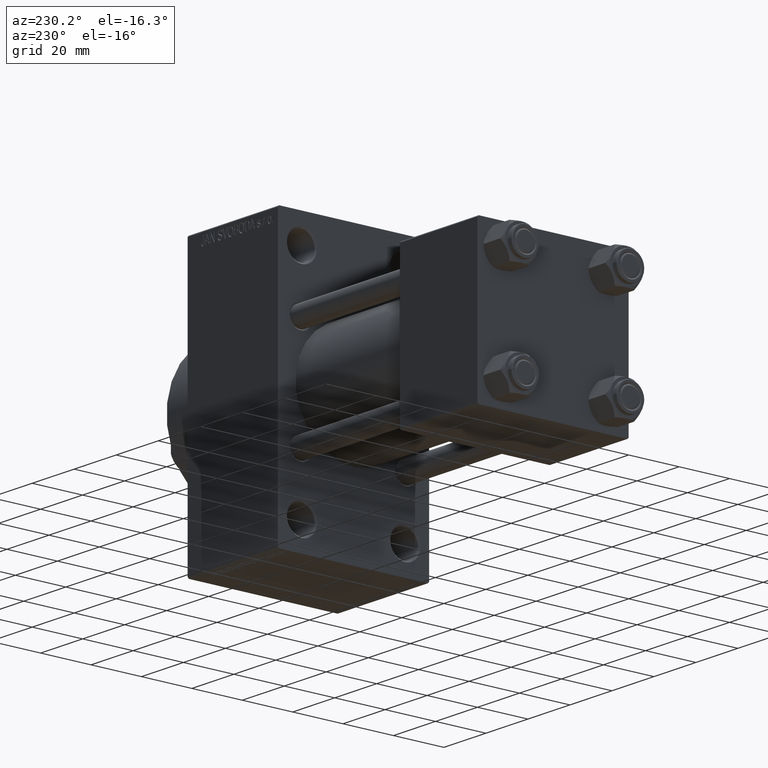
[diagram: clean part render]
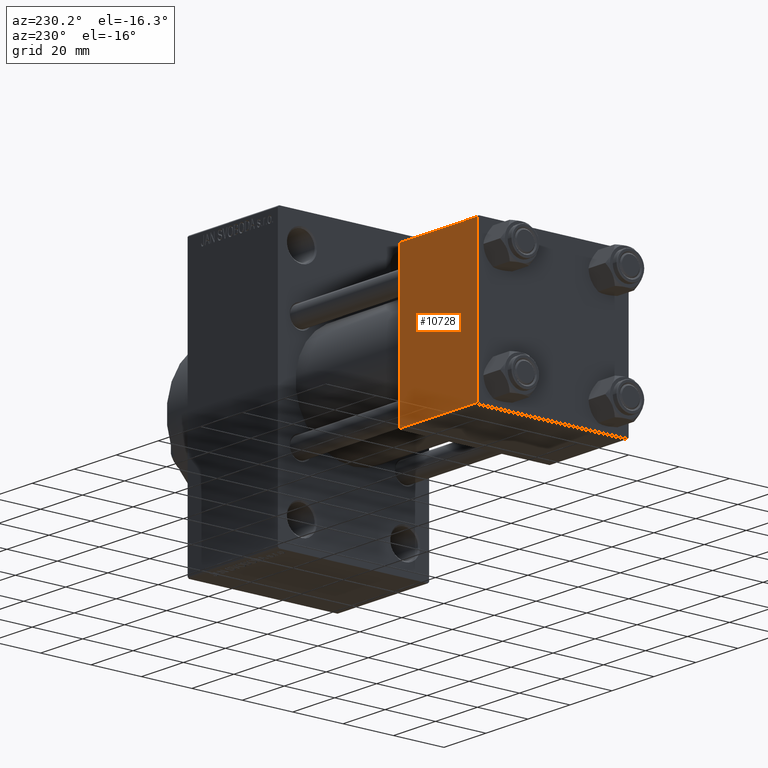
[diagram: same view with one face highlighted and labeled with its STEP entity id]
A machine part, auxiliary view. The second image highlights one B-rep face of the part: STEP entity #10728.
In plain terms, the highlighted planar face has unit normal (0, 1, 0).
Its self-contained STEP definition (entity closure, byte-faithful):
#917 = VERTEX_POINT ( 'NONE', #2960 ) ;
#2960 = CARTESIAN_POINT ( 'NONE',  ( 37.00000000000000000, 29.99999999999999289, 29.50000000000000000 ) ) ;
#3273 = CARTESIAN_POINT ( 'NONE',  ( 37.00000000000000000, 29.99999999999999289, 30.00000000000000000 ) ) ;
#5254 = ORIENTED_EDGE ( 'NONE', *, *, #46551, .T. ) ;
#5670 = LINE ( 'NONE', #6143, #43522 ) ;
#6143 = CARTESIAN_POINT ( 'NONE',  ( 37.00000000000000000, 29.99999999999999289, 29.50000000000000000 ) ) ;
#6607 = LINE ( 'NONE', #3273, #31011 ) ;
#7046 = VERTEX_POINT ( 'NONE', #46773 ) ;
#7858 = VERTEX_POINT ( 'NONE', #29341 ) ;
#10728 = ADVANCED_FACE ( 'NONE', ( #15923 ), #26240, .T. ) ;
#13985 = DIRECTION ( 'NONE',  ( 0.000000000000000000, 0.000000000000000000, -1.000000000000000000 ) ) ;
#14364 = ORIENTED_EDGE ( 'NONE', *, *, #32967, .T. ) ;
#14618 = EDGE_CURVE ( 'NONE', #7046, #18050, #38830, .T. ) ;
#15923 = FACE_OUTER_BOUND ( 'NONE', #38796, .T. ) ;
#17533 = ORIENTED_EDGE ( 'NONE', *, *, #23740, .T. ) ;
#18050 = VERTEX_POINT ( 'NONE', #29776 ) ;
#20685 = CARTESIAN_POINT ( 'NONE',  ( 0.000000000000000000, 29.99999999999999289, 30.00000000000000000 ) ) ;
#21446 = LINE ( 'NONE', #33377, #39030 ) ;
#22408 = DIRECTION ( 'NONE',  ( -1.000000000000000000, 0.000000000000000000, 0.000000000000000000 ) ) ;
#22425 = DIRECTION ( 'NONE',  ( 0.000000000000000000, -0.000000000000000000, 1.000000000000000000 ) ) ;
#23740 = EDGE_CURVE ( 'NONE', #7858, #18050, #21446, .T. ) ;
#26240 = PLANE ( 'NONE',  #29566 ) ;
#29341 = CARTESIAN_POINT ( 'NONE',  ( 37.00000000000000000, 29.99999999999999289, -29.50000000000000000 ) ) ;
#29566 = AXIS2_PLACEMENT_3D ( 'NONE', #37435, #30503, #22425 ) ;
#29776 = CARTESIAN_POINT ( 'NONE',  ( 0.000000000000000000, 29.99999999999999289, -29.50000000000000000 ) ) ;
#30503 = DIRECTION ( 'NONE',  ( -0.000000000000000000, 1.000000000000000000, 0.000000000000000000 ) ) ;
#31011 = VECTOR ( 'NONE', #43378, 1000.000000000000000 ) ;
#32779 = VECTOR ( 'NONE', #13985, 1000.000000000000000 ) ;
#32967 = EDGE_CURVE ( 'NONE', #917, #7858, #6607, .T. ) ;
#33377 = CARTESIAN_POINT ( 'NONE',  ( 37.00000000000000000, 29.99999999999999289, -29.50000000000000000 ) ) ;
#34796 = DIRECTION ( 'NONE',  ( 1.000000000000000000, 0.000000000000000000, 0.000000000000000000 ) ) ;
#35345 = ORIENTED_EDGE ( 'NONE', *, *, #14618, .F. ) ;
#37435 = CARTESIAN_POINT ( 'NONE',  ( 37.00000000000000000, 29.99999999999999289, 30.00000000000000000 ) ) ;
#38796 = EDGE_LOOP ( 'NONE', ( #14364, #17533, #35345, #5254 ) ) ;
#38830 = LINE ( 'NONE', #20685, #32779 ) ;
#39030 = VECTOR ( 'NONE', #22408, 1000.000000000000000 ) ;
#43378 = DIRECTION ( 'NONE',  ( 0.000000000000000000, 0.000000000000000000, -1.000000000000000000 ) ) ;
#43522 = VECTOR ( 'NONE', #34796, 1000.000000000000000 ) ;
#46551 = EDGE_CURVE ( 'NONE', #7046, #917, #5670, .T. ) ;
#46773 = CARTESIAN_POINT ( 'NONE',  ( 0.000000000000000000, 29.99999999999999289, 29.50000000000000000 ) ) ;